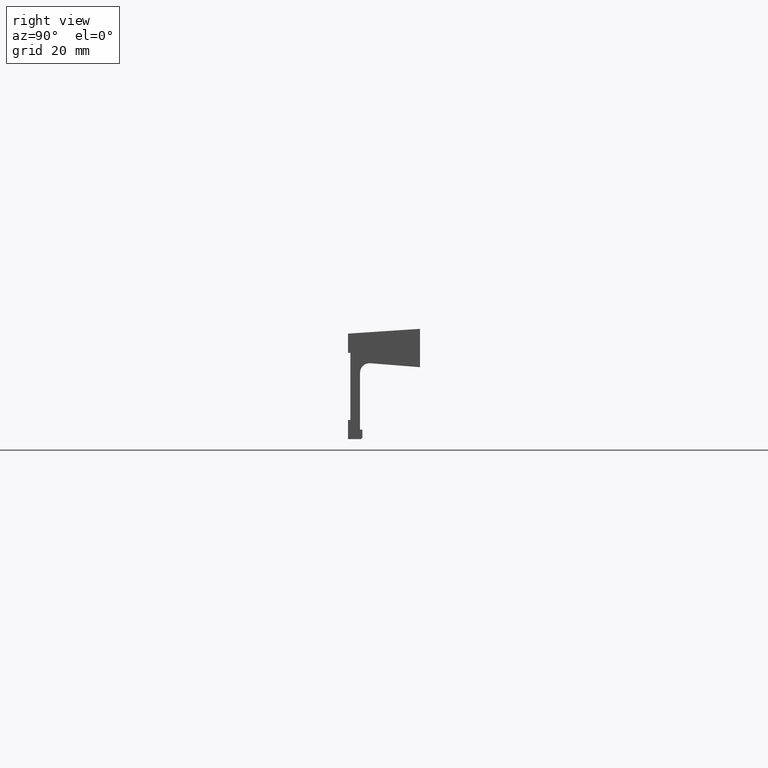
[diagram: clean part render]
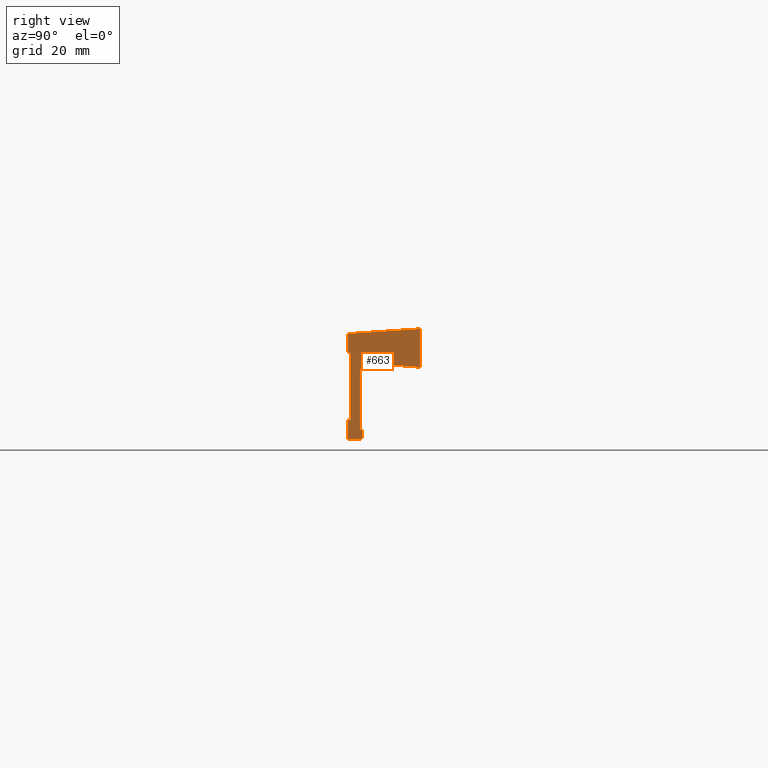
[diagram: same view with one face highlighted and labeled with its STEP entity id]
A machine part, right view. The second image highlights one B-rep face of the part: STEP entity #663.
In plain terms, the highlighted face is a freeform B-spline surface patch.
Its self-contained STEP definition (entity closure, byte-faithful):
#548=CARTESIAN_POINT('',(150.0,-15.749249970927091,1.148849955421536));
#549=CARTESIAN_POINT('',(150.0,0.749250373258442,1.148849955421536));
#550=CARTESIAN_POINT('',(150.0,-15.749249970927091,-24.148850572329611));
#551=CARTESIAN_POINT('',(150.0,0.749250373258442,-24.148850572329611));
#552=B_SPLINE_SURFACE_WITH_KNOTS('',1,1,((#548,#550),(#549,#551)),.UNSPECIFIED.,.F.,.F.,.U.,(2,2),(2,2),(0.0,16.498500344185530),(0.0,25.297700527751150),.UNSPECIFIED.);
#553=CARTESIAN_POINT('',(150.0,-15.0,-1.0));
#554=VERTEX_POINT('',#553);
#555=CARTESIAN_POINT('',(150.0,-15.0,-5.0));
#556=VERTEX_POINT('',#555);
#557=CARTESIAN_POINT('',(150.0,-15.0,-1.0));
#558=CARTESIAN_POINT('',(150.0,-15.0,-5.0));
#559=QUASI_UNIFORM_CURVE('',1,(#557,#558),.UNSPECIFIED.,.F.,.U.);
#560=EDGE_CURVE('',#554,#556,#559,.T.);
#561=ORIENTED_EDGE('',*,*,#560,.T.);
#562=CARTESIAN_POINT('',(150.0,-14.500000000000000,-5.0));
#563=VERTEX_POINT('',#562);
#564=CARTESIAN_POINT('',(150.0,-15.0,-5.0));
#565=CARTESIAN_POINT('',(150.0,-14.500000000000000,-5.0));
#566=QUASI_UNIFORM_CURVE('',1,(#564,#565),.UNSPECIFIED.,.F.,.U.);
#567=EDGE_CURVE('',#556,#563,#566,.T.);
#568=ORIENTED_EDGE('',*,*,#567,.T.);
#569=CARTESIAN_POINT('',(150.0,-14.500000000000000,-19.0));
#570=VERTEX_POINT('',#569);
#571=CARTESIAN_POINT('',(150.0,-14.500000000000000,-5.0));
#572=CARTESIAN_POINT('',(150.0,-14.500000000000000,-19.0));
#573=QUASI_UNIFORM_CURVE('',1,(#571,#572),.UNSPECIFIED.,.F.,.U.);
#574=EDGE_CURVE('',#563,#570,#573,.T.);
#575=ORIENTED_EDGE('',*,*,#574,.T.);
#576=CARTESIAN_POINT('',(150.0,-15.0,-19.0));
#577=VERTEX_POINT('',#576);
#578=CARTESIAN_POINT('',(150.0,-14.500000000000000,-19.0));
#579=CARTESIAN_POINT('',(150.0,-15.0,-19.0));
#580=QUASI_UNIFORM_CURVE('',1,(#578,#579),.UNSPECIFIED.,.F.,.U.);
#581=EDGE_CURVE('',#570,#577,#580,.T.);
#582=ORIENTED_EDGE('',*,*,#581,.T.);
#583=CARTESIAN_POINT('',(150.0,-15.0,-23.0));
#584=VERTEX_POINT('',#583);
#585=CARTESIAN_POINT('',(150.0,-15.0,-19.0));
#586=CARTESIAN_POINT('',(150.0,-15.0,-23.0));
#587=QUASI_UNIFORM_CURVE('',1,(#585,#586),.UNSPECIFIED.,.F.,.U.);
#588=EDGE_CURVE('',#577,#584,#587,.T.);
#589=ORIENTED_EDGE('',*,*,#588,.T.);
#590=CARTESIAN_POINT('',(150.0,-12.300000000000001,-23.0));
#591=VERTEX_POINT('',#590);
#592=CARTESIAN_POINT('',(150.0,-15.0,-23.0));
#593=CARTESIAN_POINT('',(150.0,-12.300000000000001,-23.0));
#594=QUASI_UNIFORM_CURVE('',1,(#592,#593),.UNSPECIFIED.,.F.,.U.);
#595=EDGE_CURVE('',#584,#591,#594,.T.);
#596=ORIENTED_EDGE('',*,*,#595,.T.);
#597=CARTESIAN_POINT('',(150.0,-12.0,-22.699999999999999));
#598=VERTEX_POINT('',#597);
#599=CARTESIAN_POINT('',(150.0,-12.300000000000001,-23.0));
#600=CARTESIAN_POINT('',(150.0,-12.0,-22.699999999999999));
#601=QUASI_UNIFORM_CURVE('',1,(#599,#600),.UNSPECIFIED.,.F.,.U.);
#602=EDGE_CURVE('',#591,#598,#601,.T.);
#603=ORIENTED_EDGE('',*,*,#602,.T.);
#604=CARTESIAN_POINT('',(150.0,-12.0,-21.0));
#605=VERTEX_POINT('',#604);
#606=CARTESIAN_POINT('',(150.0,-12.0,-22.699999999999999));
#607=CARTESIAN_POINT('',(150.0,-12.0,-21.0));
#608=QUASI_UNIFORM_CURVE('',1,(#606,#607),.UNSPECIFIED.,.F.,.U.);
#609=EDGE_CURVE('',#598,#605,#608,.T.);
#610=ORIENTED_EDGE('',*,*,#609,.T.);
#611=CARTESIAN_POINT('',(150.0,-12.500000000000000,-21.0));
#612=VERTEX_POINT('',#611);
#613=CARTESIAN_POINT('',(150.0,-12.0,-21.0));
#614=CARTESIAN_POINT('',(150.0,-12.500000000000000,-21.0));
#615=QUASI_UNIFORM_CURVE('',1,(#613,#614),.UNSPECIFIED.,.F.,.U.);
#616=EDGE_CURVE('',#605,#612,#615,.T.);
#617=ORIENTED_EDGE('',*,*,#616,.T.);
#618=CARTESIAN_POINT('',(150.0,-12.500000000000000,-9.166389999999892));
#619=VERTEX_POINT('',#618);
#620=CARTESIAN_POINT('',(150.0,-12.500000000000000,-21.0));
#621=CARTESIAN_POINT('',(150.0,-12.500000000000000,-9.166389999999892));
#622=QUASI_UNIFORM_CURVE('',1,(#620,#621),.UNSPECIFIED.,.F.,.U.);
#623=EDGE_CURVE('',#612,#619,#622,.T.);
#624=ORIENTED_EDGE('',*,*,#623,.T.);
#625=CARTESIAN_POINT('',(150.0,-10.340509564477580,-7.172759442204180));
#626=VERTEX_POINT('',#625);
#627=CARTESIAN_POINT('',(150.0,-10.340509564477580,-7.172759442204172));
#628=CARTESIAN_POINT('',(150.000000000000030,-11.213307623162233,-7.102935601493860));
#629=CARTESIAN_POINT('',(150.0,-11.856653811581120,-7.696869521911061));
#630=CARTESIAN_POINT('',(150.000000000000030,-12.500000000000004,-8.290803442328263));
#631=CARTESIAN_POINT('',(150.0,-12.500000000000000,-9.166389999999892));
#639=(BOUNDED_CURVE()B_SPLINE_CURVE(2,(#627,#628,#629,#630,#631),.UNSPECIFIED.,.F.,.U.)B_SPLINE_CURVE_WITH_KNOTS((3,2,3),(0.0,0.500000000000000,1.0),.UNSPECIFIED.)CURVE()GEOMETRIC_REPRESENTATION_ITEM()RATIONAL_B_SPLINE_CURVE((1.0,0.916058651449393,1.0,0.916058651449393,1.0))REPRESENTATION_ITEM(''));
#640=EDGE_CURVE('',#626,#619,#639,.T.);
#641=ORIENTED_EDGE('',*,*,#640,.F.);
#642=CARTESIAN_POINT('',(150.0,0.0,-8.0));
#643=VERTEX_POINT('',#642);
#644=CARTESIAN_POINT('',(150.0,-10.340509564477580,-7.172759442204180));
#645=CARTESIAN_POINT('',(150.0,0.0,-8.0));
#646=QUASI_UNIFORM_CURVE('',1,(#644,#645),.UNSPECIFIED.,.F.,.U.);
#647=EDGE_CURVE('',#626,#643,#646,.T.);
#648=ORIENTED_EDGE('',*,*,#647,.T.);
#649=CARTESIAN_POINT('',(150.0,0.0,0.0));
#650=VERTEX_POINT('',#649);
#651=CARTESIAN_POINT('',(150.0,0.0,-8.0));
#652=CARTESIAN_POINT('',(150.0,0.0,0.0));
#653=QUASI_UNIFORM_CURVE('',1,(#651,#652),.UNSPECIFIED.,.F.,.U.);
#654=EDGE_CURVE('',#643,#650,#653,.T.);
#655=ORIENTED_EDGE('',*,*,#654,.T.);
#656=CARTESIAN_POINT('',(150.0,0.0,0.0));
#657=CARTESIAN_POINT('',(150.0,-15.0,-1.0));
#658=QUASI_UNIFORM_CURVE('',1,(#656,#657),.UNSPECIFIED.,.F.,.U.);
#659=EDGE_CURVE('',#650,#554,#658,.T.);
#660=ORIENTED_EDGE('',*,*,#659,.T.);
#661=EDGE_LOOP('',(#561,#568,#575,#582,#589,#596,#603,#610,#617,#624,#641,#648,#655,#660));
#662=FACE_OUTER_BOUND('',#661,.T.);
#663=ADVANCED_FACE('',(#662),#552,.F.);